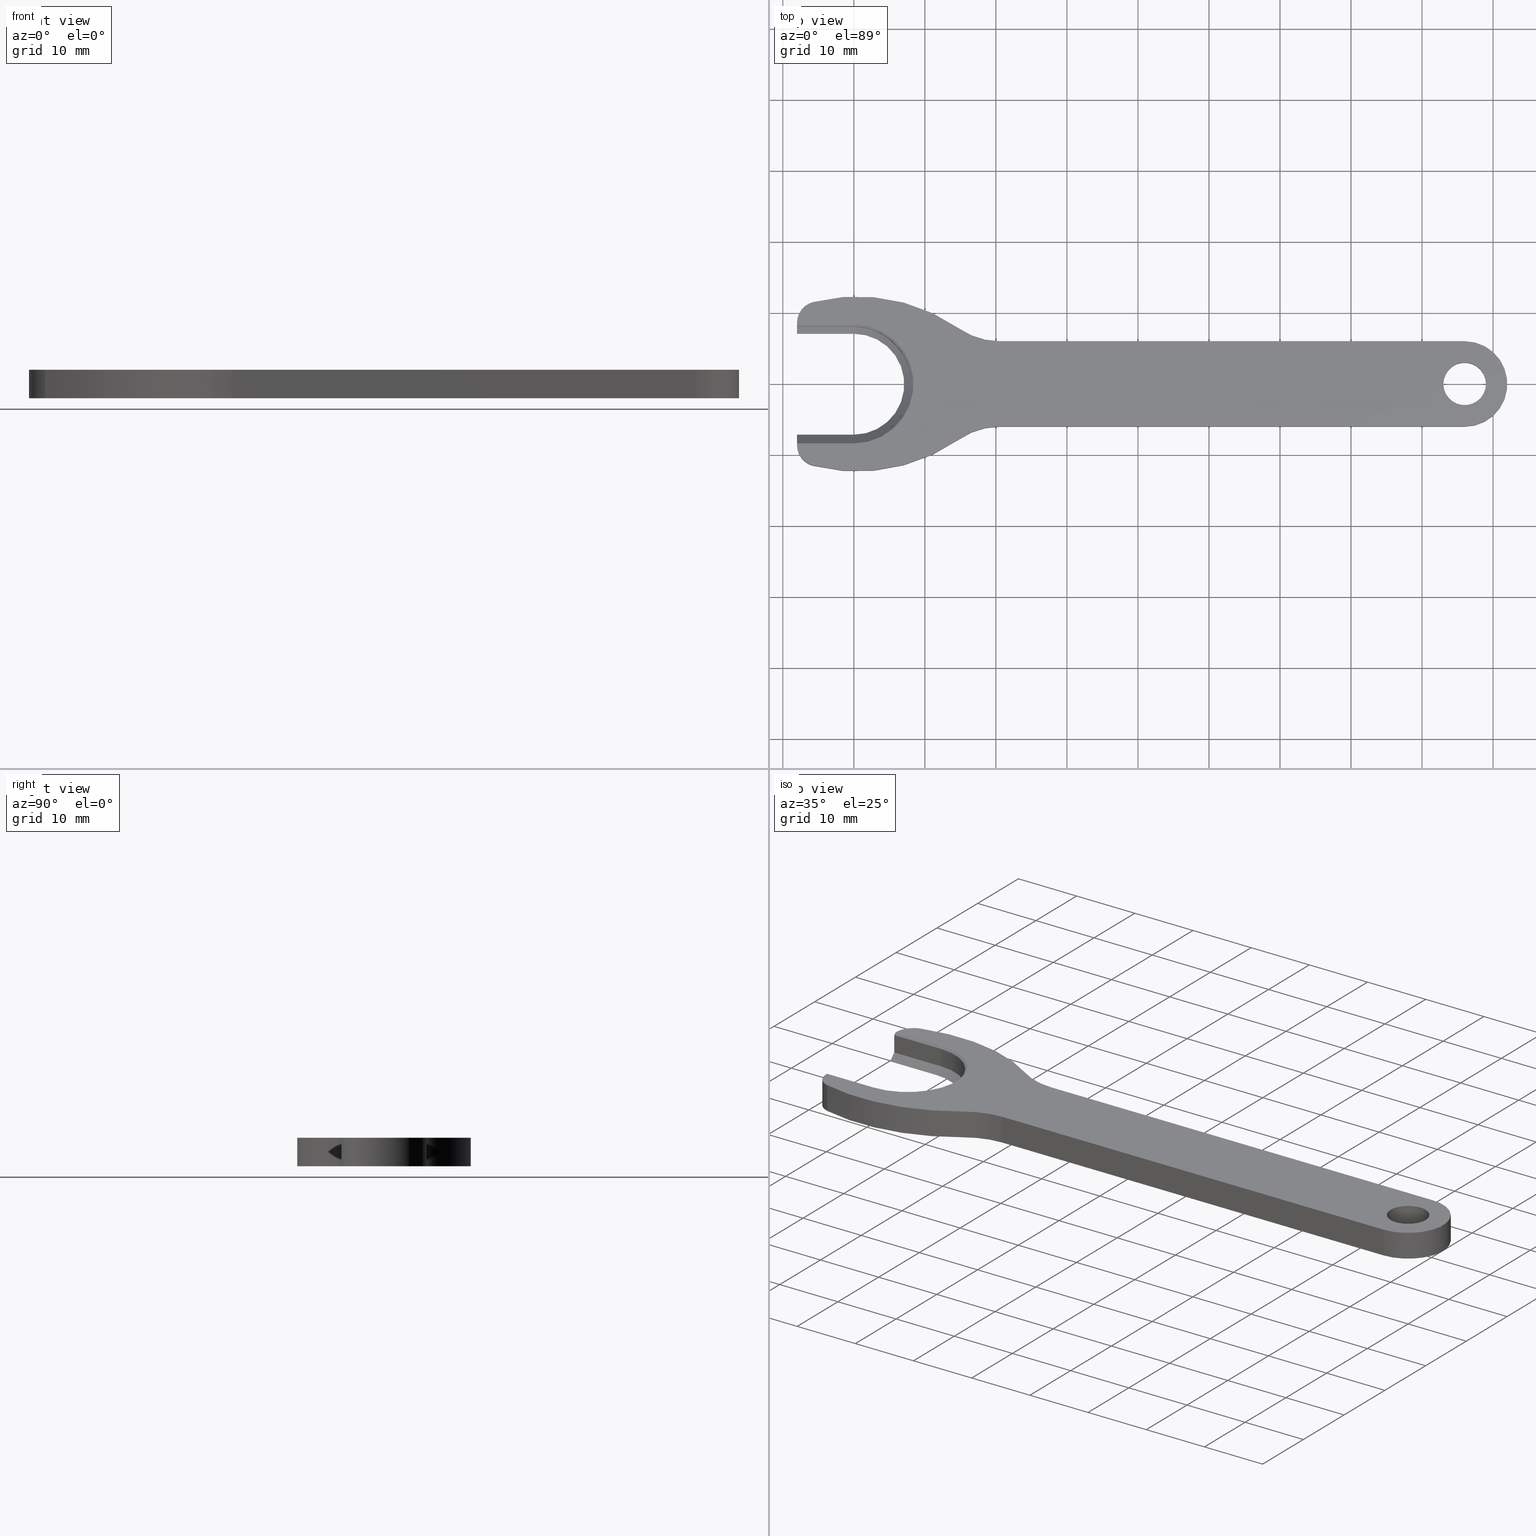
[diagram: canonical four-view strip — front | top / right | iso, engineering-drawing reading convention]
A machine part, canonical four-view strip (front | top / right | iso — engineering-drawing reading convention). The complete STEP part file that produces these views, byte-faithful:
ISO-10303-21;
HEADER;
FILE_DESCRIPTION( ( 'Unknown' ), '1' );
FILE_NAME( 'C:/Users/bkuehnle/Desktop/Homepage/732112000-A.stp', 'Unknown', ( 'Unknown' ), ( 'Unknown' ), 'PSStep 15.0.49', 'Unknown', '  ' );
FILE_SCHEMA( ( 'AUTOMOTIVE_DESIGN { 1 0 10303 214 1 1 1 1 }' ) );
ENDSEC;
DATA;
#1 = MECHANICAL_DESIGN_GEOMETRIC_PRESENTATION_REPRESENTATION( ' ', ( #10, #11, #12, #13, #14, #15, #16, #17, #18, #19, #20, #21, #22, #23, #24, #25, #26, #27, #28, #29, #30, #31, #32 ), #6 );
#2 = PRODUCT_DEFINITION_CONTEXT( '', #33, 'design' );
#3 = APPLICATION_PROTOCOL_DEFINITION( 'international standard', 'automotive_design', 2001, #33 );
#4 = PRODUCT_CATEGORY_RELATIONSHIP( 'NONE', 'NONE', #34, #35 );
#5 = SHAPE_DEFINITION_REPRESENTATION( #36, #37 );
#6 =  ( GEOMETRIC_REPRESENTATION_CONTEXT( 3 )GLOBAL_UNCERTAINTY_ASSIGNED_CONTEXT( ( #40 ) )GLOBAL_UNIT_ASSIGNED_CONTEXT( ( #42, #43, #44 ) )REPRESENTATION_CONTEXT( 'NONE', 'WORKSPACE' ) );
#10 = STYLED_ITEM( '', ( #46 ), #47 );
#11 = STYLED_ITEM( '', ( #48 ), #49 );
#12 = STYLED_ITEM( '', ( #50 ), #51 );
#13 = STYLED_ITEM( '', ( #52 ), #53 );
#14 = STYLED_ITEM( '', ( #54 ), #55 );
#15 = STYLED_ITEM( '', ( #56 ), #57 );
#16 = STYLED_ITEM( '', ( #58 ), #59 );
#17 = STYLED_ITEM( '', ( #60 ), #61 );
#18 = STYLED_ITEM( '', ( #62 ), #63 );
#19 = STYLED_ITEM( '', ( #64 ), #65 );
#20 = STYLED_ITEM( '', ( #66 ), #67 );
#21 = STYLED_ITEM( '', ( #68 ), #69 );
#22 = STYLED_ITEM( '', ( #70 ), #71 );
#23 = STYLED_ITEM( '', ( #72 ), #73 );
#24 = STYLED_ITEM( '', ( #74 ), #75 );
#25 = STYLED_ITEM( '', ( #76 ), #77 );
#26 = STYLED_ITEM( '', ( #78 ), #79 );
#27 = STYLED_ITEM( '', ( #80 ), #81 );
#28 = STYLED_ITEM( '', ( #82 ), #83 );
#29 = STYLED_ITEM( '', ( #84 ), #85 );
#30 = STYLED_ITEM( '', ( #86 ), #87 );
#31 = STYLED_ITEM( '', ( #88 ), #89 );
#32 = STYLED_ITEM( '', ( #90 ), #91 );
#33 = APPLICATION_CONTEXT( 'core data for automotive mechanical design processes' );
#34 = PRODUCT_CATEGORY( 'part', 'NONE' );
#35 = PRODUCT_RELATED_PRODUCT_CATEGORY( 'detail', ' ', ( #92 ) );
#36 = PRODUCT_DEFINITION_SHAPE( 'NONE', 'NONE', #93 );
#37 = ADVANCED_BREP_SHAPE_REPRESENTATION( '1', ( #94, #95 ), #6 );
#40 = UNCERTAINTY_MEASURE_WITH_UNIT( LENGTH_MEASURE( 0.00100000000000000 ), #42, '', '' );
#42 =  ( CONVERSION_BASED_UNIT( 'MILLIMETRE', #98 )LENGTH_UNIT(  )NAMED_UNIT( #101 ) );
#43 =  ( NAMED_UNIT( #103 )PLANE_ANGLE_UNIT(  )SI_UNIT( $, .RADIAN. ) );
#44 =  ( NAMED_UNIT( #103 )SI_UNIT( $, .STERADIAN. )SOLID_ANGLE_UNIT(  ) );
#46 = PRESENTATION_STYLE_ASSIGNMENT( ( #109 ) );
#47 = ADVANCED_FACE( '', ( #110 ), #111, .T. );
#48 = PRESENTATION_STYLE_ASSIGNMENT( ( #112 ) );
#49 = ADVANCED_FACE( '', ( #113 ), #114, .T. );
#50 = PRESENTATION_STYLE_ASSIGNMENT( ( #115 ) );
#51 = ADVANCED_FACE( '', ( #116 ), #117, .T. );
#52 = PRESENTATION_STYLE_ASSIGNMENT( ( #118 ) );
#53 = ADVANCED_FACE( '', ( #119 ), #120, .T. );
#54 = PRESENTATION_STYLE_ASSIGNMENT( ( #121 ) );
#55 = ADVANCED_FACE( '', ( #122 ), #123, .T. );
#56 = PRESENTATION_STYLE_ASSIGNMENT( ( #124 ) );
#57 = ADVANCED_FACE( '', ( #125, #126 ), #127, .F. );
#58 = PRESENTATION_STYLE_ASSIGNMENT( ( #128 ) );
#59 = ADVANCED_FACE( '', ( #129 ), #130, .F. );
#60 = PRESENTATION_STYLE_ASSIGNMENT( ( #131 ) );
#61 = ADVANCED_FACE( '', ( #132 ), #133, .F. );
#62 = PRESENTATION_STYLE_ASSIGNMENT( ( #134 ) );
#63 = ADVANCED_FACE( '', ( #135 ), #136, .F. );
#64 = PRESENTATION_STYLE_ASSIGNMENT( ( #137 ) );
#65 = ADVANCED_FACE( '', ( #138 ), #139, .T. );
#66 = PRESENTATION_STYLE_ASSIGNMENT( ( #140 ) );
#67 = ADVANCED_FACE( '', ( #141 ), #142, .T. );
#68 = PRESENTATION_STYLE_ASSIGNMENT( ( #143 ) );
#69 = ADVANCED_FACE( '', ( #144 ), #145, .T. );
#70 = PRESENTATION_STYLE_ASSIGNMENT( ( #146 ) );
#71 = ADVANCED_FACE( '', ( #147, #148 ), #149, .F. );
#72 = PRESENTATION_STYLE_ASSIGNMENT( ( #150 ) );
#73 = ADVANCED_FACE( '', ( #151 ), #152, .T. );
#74 = PRESENTATION_STYLE_ASSIGNMENT( ( #153 ) );
#75 = ADVANCED_FACE( '', ( #154, #155 ), #156, .T. );
#76 = PRESENTATION_STYLE_ASSIGNMENT( ( #157 ) );
#77 = ADVANCED_FACE( '', ( #158 ), #159, .T. );
#78 = PRESENTATION_STYLE_ASSIGNMENT( ( #160 ) );
#79 = ADVANCED_FACE( '', ( #161 ), #162, .T. );
#80 = PRESENTATION_STYLE_ASSIGNMENT( ( #163 ) );
#81 = ADVANCED_FACE( '', ( #164 ), #165, .F. );
#82 = PRESENTATION_STYLE_ASSIGNMENT( ( #166 ) );
#83 = ADVANCED_FACE( '', ( #167 ), #168, .T. );
#84 = PRESENTATION_STYLE_ASSIGNMENT( ( #169 ) );
#85 = ADVANCED_FACE( '', ( #170 ), #171, .F. );
#86 = PRESENTATION_STYLE_ASSIGNMENT( ( #172 ) );
#87 = ADVANCED_FACE( '', ( #173 ), #174, .F. );
#88 = PRESENTATION_STYLE_ASSIGNMENT( ( #175 ) );
#89 = ADVANCED_FACE( '', ( #176 ), #177, .T. );
#90 = PRESENTATION_STYLE_ASSIGNMENT( ( #178 ) );
#91 = ADVANCED_FACE( '', ( #179 ), #180, .F. );
#92 = PRODUCT( '1', '1', 'PART-1-DESC', ( #181 ) );
#93 = PRODUCT_DEFINITION( 'NONE', 'NONE', #182, #2 );
#94 = MANIFOLD_SOLID_BREP( '1', #183 );
#95 = AXIS2_PLACEMENT_3D( '', #184, #185, #186 );
#98 = LENGTH_MEASURE_WITH_UNIT( LENGTH_MEASURE( 1.00000000000000 ), #187 );
#101 = DIMENSIONAL_EXPONENTS( 1.00000000000000, 0.000000000000000, 0.000000000000000, 0.000000000000000, 0.000000000000000, 0.000000000000000, 0.000000000000000 );
#103 = DIMENSIONAL_EXPONENTS( 0.000000000000000, 0.000000000000000, 0.000000000000000, 0.000000000000000, 0.000000000000000, 0.000000000000000, 0.000000000000000 );
#109 = SURFACE_STYLE_USAGE( .BOTH., #188 );
#110 = FACE_OUTER_BOUND( '', #189, .T. );
#111 = CYLINDRICAL_SURFACE( '', #190, 25.0000000000000 );
#112 = SURFACE_STYLE_USAGE( .BOTH., #191 );
#113 = FACE_OUTER_BOUND( '', #192, .T. );
#114 = PLANE( '', #193 );
#115 = SURFACE_STYLE_USAGE( .BOTH., #194 );
#116 = FACE_OUTER_BOUND( '', #195, .T. );
#117 = PLANE( '', #196 );
#118 = SURFACE_STYLE_USAGE( .BOTH., #197 );
#119 = FACE_OUTER_BOUND( '', #198, .T. );
#120 = CYLINDRICAL_SURFACE( '', #199, 3.00000000000000 );
#121 = SURFACE_STYLE_USAGE( .BOTH., #200 );
#122 = FACE_OUTER_BOUND( '', #201, .T. );
#123 = CYLINDRICAL_SURFACE( '', #202, 25.0000000000000 );
#124 = SURFACE_STYLE_USAGE( .BOTH., #203 );
#125 = FACE_BOUND( '', #204, .T. );
#126 = FACE_OUTER_BOUND( '', #205, .T. );
#127 = PLANE( '', #206 );
#128 = SURFACE_STYLE_USAGE( .BOTH., #207 );
#129 = FACE_OUTER_BOUND( '', #208, .T. );
#130 = PLANE( '', #209 );
#131 = SURFACE_STYLE_USAGE( .BOTH., #210 );
#132 = FACE_OUTER_BOUND( '', #211, .T. );
#133 = CYLINDRICAL_SURFACE( '', #212, 10.0000000000000 );
#134 = SURFACE_STYLE_USAGE( .BOTH., #213 );
#135 = FACE_OUTER_BOUND( '', #214, .T. );
#136 = CONICAL_SURFACE( '', #215, 8.10000000000000, 0.785398163397449 );
#137 = SURFACE_STYLE_USAGE( .BOTH., #216 );
#138 = FACE_OUTER_BOUND( '', #217, .T. );
#139 = PLANE( '', #218 );
#140 = SURFACE_STYLE_USAGE( .BOTH., #219 );
#141 = FACE_OUTER_BOUND( '', #220, .T. );
#142 = PLANE( '', #221 );
#143 = SURFACE_STYLE_USAGE( .BOTH., #222 );
#144 = FACE_OUTER_BOUND( '', #223, .T. );
#145 = CYLINDRICAL_SURFACE( '', #224, 3.00000000000000 );
#146 = SURFACE_STYLE_USAGE( .BOTH., #225 );
#147 = FACE_OUTER_BOUND( '', #226, .T. );
#148 = FACE_OUTER_BOUND( '', #227, .T. );
#149 = CYLINDRICAL_SURFACE( '', #228, 3.00000000000000 );
#150 = SURFACE_STYLE_USAGE( .BOTH., #229 );
#151 = FACE_OUTER_BOUND( '', #230, .T. );
#152 = PLANE( '', #231 );
#153 = SURFACE_STYLE_USAGE( .BOTH., #232 );
#154 = FACE_OUTER_BOUND( '', #233, .T. );
#155 = FACE_BOUND( '', #234, .T. );
#156 = PLANE( '', #235 );
#157 = SURFACE_STYLE_USAGE( .BOTH., #236 );
#158 = FACE_OUTER_BOUND( '', #237, .T. );
#159 = PLANE( '', #238 );
#160 = SURFACE_STYLE_USAGE( .BOTH., #239 );
#161 = FACE_OUTER_BOUND( '', #240, .T. );
#162 = CYLINDRICAL_SURFACE( '', #241, 6.00000000000000 );
#163 = SURFACE_STYLE_USAGE( .BOTH., #242 );
#164 = FACE_OUTER_BOUND( '', #243, .T. );
#165 = CYLINDRICAL_SURFACE( '', #244, 8.10000000000000 );
#166 = SURFACE_STYLE_USAGE( .BOTH., #245 );
#167 = FACE_OUTER_BOUND( '', #246, .T. );
#168 = PLANE( '', #247 );
#169 = SURFACE_STYLE_USAGE( .BOTH., #248 );
#170 = FACE_OUTER_BOUND( '', #249, .T. );
#171 = PLANE( '', #250 );
#172 = SURFACE_STYLE_USAGE( .BOTH., #251 );
#173 = FACE_OUTER_BOUND( '', #252, .T. );
#174 = CYLINDRICAL_SURFACE( '', #253, 10.0000000000000 );
#175 = SURFACE_STYLE_USAGE( .BOTH., #254 );
#176 = FACE_OUTER_BOUND( '', #255, .T. );
#177 = PLANE( '', #256 );
#178 = SURFACE_STYLE_USAGE( .BOTH., #257 );
#179 = FACE_OUTER_BOUND( '', #258, .T. );
#180 = CONICAL_SURFACE( '', #259, 8.40000000000000, 0.785398163397448 );
#181 = PRODUCT_CONTEXT( '', #33, 'mechanical' );
#182 = PRODUCT_DEFINITION_FORMATION_WITH_SPECIFIED_SOURCE( ' ', 'NONE', #92, .NOT_KNOWN. );
#183 = CLOSED_SHELL( '', ( #89, #85, #63, #77, #67, #47, #61, #65, #79, #51, #87, #69, #53, #71, #73, #75, #57, #55, #81, #83, #49, #91, #59 ) );
#184 = CARTESIAN_POINT( '', ( 0.000000000000000, 0.000000000000000, 0.000000000000000 ) );
#185 = DIRECTION( '', ( 0.000000000000000, 0.000000000000000, 1.00000000000000 ) );
#186 = DIRECTION( '', ( 1.00000000000000, 0.000000000000000, 0.000000000000000 ) );
#187 =  ( LENGTH_UNIT(  )NAMED_UNIT( #101 )SI_UNIT( .MILLI., .METRE. ) );
#188 = SURFACE_SIDE_STYLE( '', ( #261 ) );
#189 = EDGE_LOOP( '', ( #262, #263, #264, #265 ) );
#190 = AXIS2_PLACEMENT_3D( '', #266, #267, #268 );
#191 = SURFACE_SIDE_STYLE( '', ( #269 ) );
#192 = EDGE_LOOP( '', ( #270, #271, #272, #273 ) );
#193 = AXIS2_PLACEMENT_3D( '', #274, #275, #276 );
#194 = SURFACE_SIDE_STYLE( '', ( #277 ) );
#195 = EDGE_LOOP( '', ( #278, #279, #280, #281 ) );
#196 = AXIS2_PLACEMENT_3D( '', #282, #283, #284 );
#197 = SURFACE_SIDE_STYLE( '', ( #285 ) );
#198 = EDGE_LOOP( '', ( #286, #287, #288, #289 ) );
#199 = AXIS2_PLACEMENT_3D( '', #290, #291, #292 );
#200 = SURFACE_SIDE_STYLE( '', ( #293 ) );
#201 = EDGE_LOOP( '', ( #294, #295, #296, #297 ) );
#202 = AXIS2_PLACEMENT_3D( '', #298, #299, #300 );
#203 = SURFACE_SIDE_STYLE( '', ( #301 ) );
#204 = EDGE_LOOP( '', ( #302 ) );
#205 = EDGE_LOOP( '', ( #303, #304, #305, #306, #307, #308, #309, #310, #311, #312, #313, #314, #315, #316 ) );
#206 = AXIS2_PLACEMENT_3D( '', #317, #318, #319 );
#207 = SURFACE_SIDE_STYLE( '', ( #320 ) );
#208 = EDGE_LOOP( '', ( #321, #322, #323, #324 ) );
#209 = AXIS2_PLACEMENT_3D( '', #325, #326, #327 );
#210 = SURFACE_SIDE_STYLE( '', ( #328 ) );
#211 = EDGE_LOOP( '', ( #329, #330, #331, #332 ) );
#212 = AXIS2_PLACEMENT_3D( '', #333, #334, #335 );
#213 = SURFACE_SIDE_STYLE( '', ( #336 ) );
#214 = EDGE_LOOP( '', ( #337, #338, #339, #340 ) );
#215 = AXIS2_PLACEMENT_3D( '', #341, #342, #343 );
#216 = SURFACE_SIDE_STYLE( '', ( #344 ) );
#217 = EDGE_LOOP( '', ( #345, #346, #347, #348 ) );
#218 = AXIS2_PLACEMENT_3D( '', #349, #350, #351 );
#219 = SURFACE_SIDE_STYLE( '', ( #352 ) );
#220 = EDGE_LOOP( '', ( #353, #354, #355, #356, #357, #358 ) );
#221 = AXIS2_PLACEMENT_3D( '', #359, #360, #361 );
#222 = SURFACE_SIDE_STYLE( '', ( #362 ) );
#223 = EDGE_LOOP( '', ( #363, #364, #365, #366 ) );
#224 = AXIS2_PLACEMENT_3D( '', #367, #368, #369 );
#225 = SURFACE_SIDE_STYLE( '', ( #370 ) );
#226 = EDGE_LOOP( '', ( #371 ) );
#227 = EDGE_LOOP( '', ( #372 ) );
#228 = AXIS2_PLACEMENT_3D( '', #373, #374, #375 );
#229 = SURFACE_SIDE_STYLE( '', ( #376 ) );
#230 = EDGE_LOOP( '', ( #377, #378, #379, #380 ) );
#231 = AXIS2_PLACEMENT_3D( '', #381, #382, #383 );
#232 = SURFACE_SIDE_STYLE( '', ( #384 ) );
#233 = EDGE_LOOP( '', ( #385, #386, #387, #388, #389, #390, #391, #392, #393, #394, #395, #396, #397, #398 ) );
#234 = EDGE_LOOP( '', ( #399 ) );
#235 = AXIS2_PLACEMENT_3D( '', #400, #401, #402 );
#236 = SURFACE_SIDE_STYLE( '', ( #403 ) );
#237 = EDGE_LOOP( '', ( #404, #405, #406, #407, #408, #409 ) );
#238 = AXIS2_PLACEMENT_3D( '', #410, #411, #412 );
#239 = SURFACE_SIDE_STYLE( '', ( #413 ) );
#240 = EDGE_LOOP( '', ( #414, #415, #416, #417 ) );
#241 = AXIS2_PLACEMENT_3D( '', #418, #419, #420 );
#242 = SURFACE_SIDE_STYLE( '', ( #421 ) );
#243 = EDGE_LOOP( '', ( #422, #423, #424, #425 ) );
#244 = AXIS2_PLACEMENT_3D( '', #426, #427, #428 );
#245 = SURFACE_SIDE_STYLE( '', ( #429 ) );
#246 = EDGE_LOOP( '', ( #430, #431, #432, #433 ) );
#247 = AXIS2_PLACEMENT_3D( '', #434, #435, #436 );
#248 = SURFACE_SIDE_STYLE( '', ( #437 ) );
#249 = EDGE_LOOP( '', ( #438, #439, #440, #441 ) );
#250 = AXIS2_PLACEMENT_3D( '', #442, #443, #444 );
#251 = SURFACE_SIDE_STYLE( '', ( #445 ) );
#252 = EDGE_LOOP( '', ( #446, #447, #448, #449 ) );
#253 = AXIS2_PLACEMENT_3D( '', #450, #451, #452 );
#254 = SURFACE_SIDE_STYLE( '', ( #453 ) );
#255 = EDGE_LOOP( '', ( #454, #455, #456, #457 ) );
#256 = AXIS2_PLACEMENT_3D( '', #458, #459, #460 );
#257 = SURFACE_SIDE_STYLE( '', ( #461 ) );
#258 = EDGE_LOOP( '', ( #462, #463, #464, #465 ) );
#259 = AXIS2_PLACEMENT_3D( '', #466, #467, #468 );
#261 = SURFACE_STYLE_FILL_AREA( #469 );
#262 = ORIENTED_EDGE( '', *, *, #470, .T. );
#263 = ORIENTED_EDGE( '', *, *, #471, .T. );
#264 = ORIENTED_EDGE( '', *, *, #472, .F. );
#265 = ORIENTED_EDGE( '', *, *, #473, .F. );
#266 = CARTESIAN_POINT( '', ( 0.500000000000000, 12.7000000000000, 2.00000000000000 ) );
#267 = DIRECTION( '', ( -0.000000000000000, -0.000000000000000, 1.00000000000000 ) );
#268 = DIRECTION( '', ( -1.00000000000000, 0.000000000000000, 0.000000000000000 ) );
#269 = SURFACE_STYLE_FILL_AREA( #474 );
#270 = ORIENTED_EDGE( '', *, *, #475, .F. );
#271 = ORIENTED_EDGE( '', *, *, #476, .F. );
#272 = ORIENTED_EDGE( '', *, *, #477, .F. );
#273 = ORIENTED_EDGE( '', *, *, #478, .F. );
#274 = CARTESIAN_POINT( '', ( 0.000000000000000, 8.10000000000000, -1.00000000000000 ) );
#275 = DIRECTION( '', ( 0.000000000000000, -0.707106781186547, 0.707106781186548 ) );
#276 = DIRECTION( '', ( 0.000000000000000, -0.707106781186548, -0.707106781186547 ) );
#277 = SURFACE_STYLE_FILL_AREA( #479 );
#278 = ORIENTED_EDGE( '', *, *, #480, .F. );
#279 = ORIENTED_EDGE( '', *, *, #481, .F. );
#280 = ORIENTED_EDGE( '', *, *, #482, .T. );
#281 = ORIENTED_EDGE( '', *, *, #483, .T. );
#282 = CARTESIAN_POINT( '', ( 20.5327232297558, 6.00000000000000, 2.00000000000000 ) );
#283 = DIRECTION( '', ( 1.32487829153546E-016, 1.00000000000000, 0.000000000000000 ) );
#284 = DIRECTION( '', ( -1.00000000000000, 1.32487829153546E-016, 0.000000000000000 ) );
#285 = SURFACE_STYLE_FILL_AREA( #484 );
#286 = ORIENTED_EDGE( '', *, *, #485, .F. );
#287 = ORIENTED_EDGE( '', *, *, #486, .F. );
#288 = ORIENTED_EDGE( '', *, *, #487, .F. );
#289 = ORIENTED_EDGE( '', *, *, #471, .F. );
#290 = CARTESIAN_POINT( '', ( -5.00000000000000, -8.60140840414081, 2.00000000000000 ) );
#291 = DIRECTION( '', ( -0.000000000000000, -0.000000000000000, 1.00000000000000 ) );
#292 = DIRECTION( '', ( -1.00000000000000, 0.000000000000000, 0.000000000000000 ) );
#293 = SURFACE_STYLE_FILL_AREA( #488 );
#294 = ORIENTED_EDGE( '', *, *, #489, .F. );
#295 = ORIENTED_EDGE( '', *, *, #490, .T. );
#296 = ORIENTED_EDGE( '', *, *, #491, .T. );
#297 = ORIENTED_EDGE( '', *, *, #492, .T. );
#298 = CARTESIAN_POINT( '', ( 0.500000000000000, -12.7000000000000, 2.00000000000000 ) );
#299 = DIRECTION( '', ( -0.000000000000000, -0.000000000000000, 1.00000000000000 ) );
#300 = DIRECTION( '', ( -1.00000000000000, 0.000000000000000, 0.000000000000000 ) );
#301 = SURFACE_STYLE_FILL_AREA( #493 );
#302 = ORIENTED_EDGE( '', *, *, #494, .T. );
#303 = ORIENTED_EDGE( '', *, *, #472, .T. );
#304 = ORIENTED_EDGE( '', *, *, #487, .T. );
#305 = ORIENTED_EDGE( '', *, *, #495, .T. );
#306 = ORIENTED_EDGE( '', *, *, #496, .T. );
#307 = ORIENTED_EDGE( '', *, *, #497, .T. );
#308 = ORIENTED_EDGE( '', *, *, #476, .T. );
#309 = ORIENTED_EDGE( '', *, *, #498, .T. );
#310 = ORIENTED_EDGE( '', *, *, #499, .T. );
#311 = ORIENTED_EDGE( '', *, *, #489, .T. );
#312 = ORIENTED_EDGE( '', *, *, #500, .T. );
#313 = ORIENTED_EDGE( '', *, *, #480, .T. );
#314 = ORIENTED_EDGE( '', *, *, #501, .T. );
#315 = ORIENTED_EDGE( '', *, *, #502, .T. );
#316 = ORIENTED_EDGE( '', *, *, #503, .T. );
#317 = CARTESIAN_POINT( '', ( 20.5327232297558, 16.0000000000000, -2.00000000000000 ) );
#318 = DIRECTION( '', ( 0.000000000000000, 0.000000000000000, 1.00000000000000 ) );
#319 = DIRECTION( '', ( 1.00000000000000, 0.000000000000000, 0.000000000000000 ) );
#320 = SURFACE_STYLE_FILL_AREA( #504 );
#321 = ORIENTED_EDGE( '', *, *, #505, .F. );
#322 = ORIENTED_EDGE( '', *, *, #506, .F. );
#323 = ORIENTED_EDGE( '', *, *, #507, .T. );
#324 = ORIENTED_EDGE( '', *, *, #508, .F. );
#325 = CARTESIAN_POINT( '', ( 20.5327232297558, 8.40000000000000, 2.00000000000000 ) );
#326 = DIRECTION( '', ( 0.000000000000000, 0.707106781186548, -0.707106781186548 ) );
#327 = DIRECTION( '', ( 0.000000000000000, 0.707106781186548, 0.707106781186548 ) );
#328 = SURFACE_STYLE_FILL_AREA( #509 );
#329 = ORIENTED_EDGE( '', *, *, #503, .F. );
#330 = ORIENTED_EDGE( '', *, *, #510, .F. );
#331 = ORIENTED_EDGE( '', *, *, #511, .T. );
#332 = ORIENTED_EDGE( '', *, *, #473, .T. );
#333 = CARTESIAN_POINT( '', ( 20.5327232297559, -16.0000000000000, 2.00000000000000 ) );
#334 = DIRECTION( '', ( -0.000000000000000, -0.000000000000000, 1.00000000000000 ) );
#335 = DIRECTION( '', ( -1.00000000000000, 0.000000000000000, 0.000000000000000 ) );
#336 = SURFACE_STYLE_FILL_AREA( #512 );
#337 = ORIENTED_EDGE( '', *, *, #477, .T. );
#338 = ORIENTED_EDGE( '', *, *, #497, .F. );
#339 = ORIENTED_EDGE( '', *, *, #513, .F. );
#340 = ORIENTED_EDGE( '', *, *, #514, .F. );
#341 = CARTESIAN_POINT( '', ( 3.30643715532042E-015, 0.000000000000000, -1.00000000000000 ) );
#342 = DIRECTION( '', ( -0.000000000000000, -0.000000000000000, 1.00000000000000 ) );
#343 = DIRECTION( '', ( 1.00000000000000, 0.000000000000000, 0.000000000000000 ) );
#344 = SURFACE_STYLE_FILL_AREA( #515 );
#345 = ORIENTED_EDGE( '', *, *, #502, .F. );
#346 = ORIENTED_EDGE( '', *, *, #516, .F. );
#347 = ORIENTED_EDGE( '', *, *, #517, .T. );
#348 = ORIENTED_EDGE( '', *, *, #510, .T. );
#349 = CARTESIAN_POINT( '', ( 86.0000000000000, -6.00000000000000, 2.00000000000000 ) );
#350 = DIRECTION( '', ( -5.29951316614185E-017, -1.00000000000000, 0.000000000000000 ) );
#351 = DIRECTION( '', ( 1.00000000000000, -5.29951316614185E-017, 0.000000000000000 ) );
#352 = SURFACE_STYLE_FILL_AREA( #518 );
#353 = ORIENTED_EDGE( '', *, *, #519, .T. );
#354 = ORIENTED_EDGE( '', *, *, #505, .T. );
#355 = ORIENTED_EDGE( '', *, *, #520, .T. );
#356 = ORIENTED_EDGE( '', *, *, #521, .T. );
#357 = ORIENTED_EDGE( '', *, *, #498, .F. );
#358 = ORIENTED_EDGE( '', *, *, #475, .T. );
#359 = CARTESIAN_POINT( '', ( -8.00000000000000, 10.8106358910175, 2.00000000000000 ) );
#360 = DIRECTION( '', ( -1.00000000000000, -4.67500322566309E-016, 0.000000000000000 ) );
#361 = DIRECTION( '', ( 4.67500322566309E-016, -1.00000000000000, 0.000000000000000 ) );
#362 = SURFACE_STYLE_FILL_AREA( #522 );
#363 = ORIENTED_EDGE( '', *, *, #523, .F. );
#364 = ORIENTED_EDGE( '', *, *, #490, .F. );
#365 = ORIENTED_EDGE( '', *, *, #499, .F. );
#366 = ORIENTED_EDGE( '', *, *, #521, .F. );
#367 = CARTESIAN_POINT( '', ( -5.00000000000000, 8.60140840414080, 2.00000000000000 ) );
#368 = DIRECTION( '', ( -0.000000000000000, -0.000000000000000, 1.00000000000000 ) );
#369 = DIRECTION( '', ( -1.00000000000000, 0.000000000000000, 0.000000000000000 ) );
#370 = SURFACE_STYLE_FILL_AREA( #524 );
#371 = ORIENTED_EDGE( '', *, *, #494, .F. );
#372 = ORIENTED_EDGE( '', *, *, #525, .T. );
#373 = CARTESIAN_POINT( '', ( 86.0000000000000, 0.000000000000000, -101.059012221154 ) );
#374 = DIRECTION( '', ( -0.000000000000000, -0.000000000000000, -1.00000000000000 ) );
#375 = DIRECTION( '', ( 1.00000000000000, 0.000000000000000, 0.000000000000000 ) );
#376 = SURFACE_STYLE_FILL_AREA( #526 );
#377 = ORIENTED_EDGE( '', *, *, #527, .T. );
#378 = ORIENTED_EDGE( '', *, *, #506, .T. );
#379 = ORIENTED_EDGE( '', *, *, #519, .F. );
#380 = ORIENTED_EDGE( '', *, *, #478, .T. );
#381 = CARTESIAN_POINT( '', ( -8.00000000000000, 8.10000000000000, -1.00000000000000 ) );
#382 = DIRECTION( '', ( 0.000000000000000, -1.00000000000000, 0.000000000000000 ) );
#383 = DIRECTION( '', ( 0.000000000000000, 0.000000000000000, -1.00000000000000 ) );
#384 = SURFACE_STYLE_FILL_AREA( #528 );
#385 = ORIENTED_EDGE( '', *, *, #520, .F. );
#386 = ORIENTED_EDGE( '', *, *, #508, .T. );
#387 = ORIENTED_EDGE( '', *, *, #529, .T. );
#388 = ORIENTED_EDGE( '', *, *, #530, .T. );
#389 = ORIENTED_EDGE( '', *, *, #531, .F. );
#390 = ORIENTED_EDGE( '', *, *, #485, .T. );
#391 = ORIENTED_EDGE( '', *, *, #470, .F. );
#392 = ORIENTED_EDGE( '', *, *, #511, .F. );
#393 = ORIENTED_EDGE( '', *, *, #517, .F. );
#394 = ORIENTED_EDGE( '', *, *, #532, .F. );
#395 = ORIENTED_EDGE( '', *, *, #482, .F. );
#396 = ORIENTED_EDGE( '', *, *, #533, .F. );
#397 = ORIENTED_EDGE( '', *, *, #491, .F. );
#398 = ORIENTED_EDGE( '', *, *, #523, .T. );
#399 = ORIENTED_EDGE( '', *, *, #525, .F. );
#400 = CARTESIAN_POINT( '', ( 20.5327232297558, 16.0000000000000, 2.00000000000000 ) );
#401 = DIRECTION( '', ( 0.000000000000000, 0.000000000000000, 1.00000000000000 ) );
#402 = DIRECTION( '', ( 1.00000000000000, 0.000000000000000, 0.000000000000000 ) );
#403 = SURFACE_STYLE_FILL_AREA( #534 );
#404 = ORIENTED_EDGE( '', *, *, #531, .T. );
#405 = ORIENTED_EDGE( '', *, *, #535, .T. );
#406 = ORIENTED_EDGE( '', *, *, #536, .F. );
#407 = ORIENTED_EDGE( '', *, *, #537, .T. );
#408 = ORIENTED_EDGE( '', *, *, #495, .F. );
#409 = ORIENTED_EDGE( '', *, *, #486, .T. );
#410 = CARTESIAN_POINT( '', ( -8.00000000000000, -7.10000000000000, 2.00000000000000 ) );
#411 = DIRECTION( '', ( -1.00000000000000, 4.67500322566309E-016, 0.000000000000000 ) );
#412 = DIRECTION( '', ( -4.67500322566309E-016, -1.00000000000000, 0.000000000000000 ) );
#413 = SURFACE_STYLE_FILL_AREA( #538 );
#414 = ORIENTED_EDGE( '', *, *, #501, .F. );
#415 = ORIENTED_EDGE( '', *, *, #483, .F. );
#416 = ORIENTED_EDGE( '', *, *, #532, .T. );
#417 = ORIENTED_EDGE( '', *, *, #516, .T. );
#418 = CARTESIAN_POINT( '', ( 86.0000000000000, 0.000000000000000, 2.00000000000000 ) );
#419 = DIRECTION( '', ( -0.000000000000000, -0.000000000000000, 1.00000000000000 ) );
#420 = DIRECTION( '', ( -1.00000000000000, 0.000000000000000, 0.000000000000000 ) );
#421 = SURFACE_STYLE_FILL_AREA( #539 );
#422 = ORIENTED_EDGE( '', *, *, #540, .T. );
#423 = ORIENTED_EDGE( '', *, *, #541, .T. );
#424 = ORIENTED_EDGE( '', *, *, #527, .F. );
#425 = ORIENTED_EDGE( '', *, *, #514, .T. );
#426 = CARTESIAN_POINT( '', ( 0.000000000000000, 0.000000000000000, -1.00000000000000 ) );
#427 = DIRECTION( '', ( -0.000000000000000, -0.000000000000000, -1.00000000000000 ) );
#428 = DIRECTION( '', ( 1.00000000000000, 0.000000000000000, 0.000000000000000 ) );
#429 = SURFACE_STYLE_FILL_AREA( #542 );
#430 = ORIENTED_EDGE( '', *, *, #536, .T. );
#431 = ORIENTED_EDGE( '', *, *, #543, .T. );
#432 = ORIENTED_EDGE( '', *, *, #540, .F. );
#433 = ORIENTED_EDGE( '', *, *, #544, .T. );
#434 = CARTESIAN_POINT( '', ( 0.000000000000000, -8.10000000000000, -1.00000000000000 ) );
#435 = DIRECTION( '', ( 0.000000000000000, 1.00000000000000, 0.000000000000000 ) );
#436 = DIRECTION( '', ( 0.000000000000000, 0.000000000000000, 1.00000000000000 ) );
#437 = SURFACE_STYLE_FILL_AREA( #545 );
#438 = ORIENTED_EDGE( '', *, *, #535, .F. );
#439 = ORIENTED_EDGE( '', *, *, #530, .F. );
#440 = ORIENTED_EDGE( '', *, *, #546, .F. );
#441 = ORIENTED_EDGE( '', *, *, #543, .F. );
#442 = CARTESIAN_POINT( '', ( 20.5327232297558, -8.40000000000000, 2.00000000000000 ) );
#443 = DIRECTION( '', ( 0.000000000000000, -0.707106781186546, -0.707106781186549 ) );
#444 = DIRECTION( '', ( 0.000000000000000, 0.707106781186549, -0.707106781186545 ) );
#445 = SURFACE_STYLE_FILL_AREA( #547 );
#446 = ORIENTED_EDGE( '', *, *, #500, .F. );
#447 = ORIENTED_EDGE( '', *, *, #492, .F. );
#448 = ORIENTED_EDGE( '', *, *, #533, .T. );
#449 = ORIENTED_EDGE( '', *, *, #481, .T. );
#450 = CARTESIAN_POINT( '', ( 20.5327232297558, 16.0000000000000, 2.00000000000000 ) );
#451 = DIRECTION( '', ( -0.000000000000000, -0.000000000000000, 1.00000000000000 ) );
#452 = DIRECTION( '', ( -1.00000000000000, 0.000000000000000, 0.000000000000000 ) );
#453 = SURFACE_STYLE_FILL_AREA( #548 );
#454 = ORIENTED_EDGE( '', *, *, #513, .T. );
#455 = ORIENTED_EDGE( '', *, *, #496, .F. );
#456 = ORIENTED_EDGE( '', *, *, #537, .F. );
#457 = ORIENTED_EDGE( '', *, *, #544, .F. );
#458 = CARTESIAN_POINT( '', ( 1.75640751942652E-015, -8.10000000000000, -1.00000000000000 ) );
#459 = DIRECTION( '', ( -1.53329341668337E-016, 0.707106781186548, 0.707106781186548 ) );
#460 = DIRECTION( '', ( 0.000000000000000, -0.707106781186548, 0.707106781186548 ) );
#461 = SURFACE_STYLE_FILL_AREA( #549 );
#462 = ORIENTED_EDGE( '', *, *, #546, .T. );
#463 = ORIENTED_EDGE( '', *, *, #529, .F. );
#464 = ORIENTED_EDGE( '', *, *, #507, .F. );
#465 = ORIENTED_EDGE( '', *, *, #541, .F. );
#466 = CARTESIAN_POINT( '', ( 0.000000000000000, 0.000000000000000, 2.00000000000000 ) );
#467 = DIRECTION( '', ( -0.000000000000000, -0.000000000000000, 1.00000000000000 ) );
#468 = DIRECTION( '', ( 1.00000000000000, 0.000000000000000, 0.000000000000000 ) );
#469 = FILL_AREA_STYLE( '', ( #550 ) );
#470 = EDGE_CURVE( '', #551, #552, #553, .T. );
#471 = EDGE_CURVE( '', #552, #554, #555, .T. );
#472 = EDGE_CURVE( '', #556, #554, #557, .T. );
#473 = EDGE_CURVE( '', #551, #556, #558, .T. );
#474 = FILL_AREA_STYLE( '', ( #559 ) );
#475 = EDGE_CURVE( '', #560, #561, #562, .T. );
#476 = EDGE_CURVE( '', #563, #560, #564, .T. );
#477 = EDGE_CURVE( '', #565, #563, #566, .T. );
#478 = EDGE_CURVE( '', #561, #565, #567, .T. );
#479 = FILL_AREA_STYLE( '', ( #568 ) );
#480 = EDGE_CURVE( '', #569, #570, #571, .T. );
#481 = EDGE_CURVE( '', #572, #569, #573, .T. );
#482 = EDGE_CURVE( '', #572, #574, #575, .T. );
#483 = EDGE_CURVE( '', #574, #570, #576, .T. );
#484 = FILL_AREA_STYLE( '', ( #577 ) );
#485 = EDGE_CURVE( '', #578, #552, #579, .T. );
#486 = EDGE_CURVE( '', #580, #578, #581, .F. );
#487 = EDGE_CURVE( '', #554, #580, #582, .F. );
#488 = FILL_AREA_STYLE( '', ( #583 ) );
#489 = EDGE_CURVE( '', #584, #585, #586, .T. );
#490 = EDGE_CURVE( '', #584, #587, #588, .F. );
#491 = EDGE_CURVE( '', #587, #589, #590, .T. );
#492 = EDGE_CURVE( '', #589, #585, #591, .T. );
#493 = FILL_AREA_STYLE( '', ( #592 ) );
#494 = EDGE_CURVE( '', #593, #593, #594, .T. );
#495 = EDGE_CURVE( '', #580, #595, #596, .T. );
#496 = EDGE_CURVE( '', #595, #597, #598, .T. );
#497 = EDGE_CURVE( '', #597, #563, #599, .T. );
#498 = EDGE_CURVE( '', #560, #600, #601, .T. );
#499 = EDGE_CURVE( '', #600, #584, #602, .F. );
#500 = EDGE_CURVE( '', #585, #569, #603, .T. );
#501 = EDGE_CURVE( '', #570, #604, #605, .T. );
#502 = EDGE_CURVE( '', #604, #606, #607, .T. );
#503 = EDGE_CURVE( '', #606, #556, #608, .T. );
#504 = FILL_AREA_STYLE( '', ( #609 ) );
#505 = EDGE_CURVE( '', #610, #611, #612, .F. );
#506 = EDGE_CURVE( '', #613, #610, #614, .T. );
#507 = EDGE_CURVE( '', #613, #615, #616, .T. );
#508 = EDGE_CURVE( '', #611, #615, #617, .T. );
#509 = FILL_AREA_STYLE( '', ( #618 ) );
#510 = EDGE_CURVE( '', #619, #606, #620, .T. );
#511 = EDGE_CURVE( '', #619, #551, #621, .T. );
#512 = FILL_AREA_STYLE( '', ( #622 ) );
#513 = EDGE_CURVE( '', #623, #597, #624, .T. );
#514 = EDGE_CURVE( '', #565, #623, #625, .T. );
#515 = FILL_AREA_STYLE( '', ( #626 ) );
#516 = EDGE_CURVE( '', #627, #604, #628, .T. );
#517 = EDGE_CURVE( '', #627, #619, #629, .T. );
#518 = FILL_AREA_STYLE( '', ( #630 ) );
#519 = EDGE_CURVE( '', #561, #610, #631, .T. );
#520 = EDGE_CURVE( '', #611, #632, #633, .T. );
#521 = EDGE_CURVE( '', #632, #600, #634, .T. );
#522 = FILL_AREA_STYLE( '', ( #635 ) );
#523 = EDGE_CURVE( '', #587, #632, #636, .T. );
#524 = FILL_AREA_STYLE( '', ( #637 ) );
#525 = EDGE_CURVE( '', #638, #638, #639, .T. );
#526 = FILL_AREA_STYLE( '', ( #640 ) );
#527 = EDGE_CURVE( '', #565, #613, #641, .T. );
#528 = FILL_AREA_STYLE( '', ( #642 ) );
#529 = EDGE_CURVE( '', #615, #643, #644, .F. );
#530 = EDGE_CURVE( '', #643, #645, #646, .T. );
#531 = EDGE_CURVE( '', #578, #645, #647, .T. );
#532 = EDGE_CURVE( '', #574, #627, #648, .T. );
#533 = EDGE_CURVE( '', #589, #572, #649, .T. );
#534 = FILL_AREA_STYLE( '', ( #650 ) );
#535 = EDGE_CURVE( '', #645, #651, #652, .F. );
#536 = EDGE_CURVE( '', #653, #651, #654, .T. );
#537 = EDGE_CURVE( '', #653, #595, #655, .T. );
#538 = FILL_AREA_STYLE( '', ( #656 ) );
#539 = FILL_AREA_STYLE( '', ( #657 ) );
#540 = EDGE_CURVE( '', #623, #658, #659, .T. );
#541 = EDGE_CURVE( '', #658, #613, #660, .T. );
#542 = FILL_AREA_STYLE( '', ( #661 ) );
#543 = EDGE_CURVE( '', #651, #658, #662, .T. );
#544 = EDGE_CURVE( '', #623, #653, #663, .T. );
#545 = FILL_AREA_STYLE( '', ( #664 ) );
#546 = EDGE_CURVE( '', #658, #643, #665, .T. );
#547 = FILL_AREA_STYLE( '', ( #666 ) );
#548 = FILL_AREA_STYLE( '', ( #667 ) );
#549 = FILL_AREA_STYLE( '', ( #668 ) );
#550 = FILL_AREA_STYLE_COLOUR( '', #669 );
#551 = VERTEX_POINT( '', #670 );
#552 = VERTEX_POINT( '', #671 );
#553 = CIRCLE( '', #672, 25.0000000000000 );
#554 = VERTEX_POINT( '', #673 );
#555 = LINE( '', #674, #675 );
#556 = VERTEX_POINT( '', #676 );
#557 = CIRCLE( '', #677, 25.0000000000000 );
#558 = LINE( '', #678, #679 );
#559 = FILL_AREA_STYLE_COLOUR( '', #680 );
#560 = VERTEX_POINT( '', #681 );
#561 = VERTEX_POINT( '', #682 );
#562 = LINE( '', #683, #684 );
#563 = VERTEX_POINT( '', #685 );
#564 = LINE( '', #686, #687 );
#565 = VERTEX_POINT( '', #688 );
#566 = LINE( '', #689, #690 );
#567 = LINE( '', #691, #692 );
#568 = FILL_AREA_STYLE_COLOUR( '', #693 );
#569 = VERTEX_POINT( '', #694 );
#570 = VERTEX_POINT( '', #695 );
#571 = LINE( '', #696, #697 );
#572 = VERTEX_POINT( '', #698 );
#573 = LINE( '', #699, #700 );
#574 = VERTEX_POINT( '', #701 );
#575 = LINE( '', #702, #703 );
#576 = LINE( '', #704, #705 );
#577 = FILL_AREA_STYLE_COLOUR( '', #706 );
#578 = VERTEX_POINT( '', #707 );
#579 = CIRCLE( '', #708, 3.00000000000000 );
#580 = VERTEX_POINT( '', #709 );
#581 = LINE( '', #710, #711 );
#582 = CIRCLE( '', #712, 3.00000000000000 );
#583 = FILL_AREA_STYLE_COLOUR( '', #713 );
#584 = VERTEX_POINT( '', #714 );
#585 = VERTEX_POINT( '', #715 );
#586 = CIRCLE( '', #716, 25.0000000000000 );
#587 = VERTEX_POINT( '', #717 );
#588 = LINE( '', #718, #719 );
#589 = VERTEX_POINT( '', #720 );
#590 = CIRCLE( '', #721, 25.0000000000000 );
#591 = LINE( '', #722, #723 );
#592 = FILL_AREA_STYLE_COLOUR( '', #724 );
#593 = VERTEX_POINT( '', #725 );
#594 = CIRCLE( '', #726, 3.00000000000000 );
#595 = VERTEX_POINT( '', #727 );
#596 = LINE( '', #728, #729 );
#597 = VERTEX_POINT( '', #730 );
#598 = LINE( '', #731, #732 );
#599 = CIRCLE( '', #733, 7.10000000000000 );
#600 = VERTEX_POINT( '', #734 );
#601 = LINE( '', #735, #736 );
#602 = CIRCLE( '', #737, 3.00000000000000 );
#603 = CIRCLE( '', #738, 10.0000000000000 );
#604 = VERTEX_POINT( '', #739 );
#605 = CIRCLE( '', #740, 6.00000000000000 );
#606 = VERTEX_POINT( '', #741 );
#607 = LINE( '', #742, #743 );
#608 = CIRCLE( '', #744, 10.0000000000000 );
#609 = FILL_AREA_STYLE_COLOUR( '', #745 );
#610 = VERTEX_POINT( '', #746 );
#611 = VERTEX_POINT( '', #747 );
#612 = LINE( '', #748, #749 );
#613 = VERTEX_POINT( '', #750 );
#614 = LINE( '', #751, #752 );
#615 = VERTEX_POINT( '', #753 );
#616 = LINE( '', #754, #755 );
#617 = LINE( '', #756, #757 );
#618 = FILL_AREA_STYLE_COLOUR( '', #758 );
#619 = VERTEX_POINT( '', #759 );
#620 = LINE( '', #760, #761 );
#621 = CIRCLE( '', #762, 10.0000000000000 );
#622 = FILL_AREA_STYLE_COLOUR( '', #763 );
#623 = VERTEX_POINT( '', #764 );
#624 = LINE( '', #765, #766 );
#625 = CIRCLE( '', #767, 8.10000000000000 );
#626 = FILL_AREA_STYLE_COLOUR( '', #768 );
#627 = VERTEX_POINT( '', #769 );
#628 = LINE( '', #770, #771 );
#629 = LINE( '', #772, #773 );
#630 = FILL_AREA_STYLE_COLOUR( '', #774 );
#631 = LINE( '', #775, #776 );
#632 = VERTEX_POINT( '', #777 );
#633 = LINE( '', #778, #779 );
#634 = LINE( '', #780, #781 );
#635 = FILL_AREA_STYLE_COLOUR( '', #782 );
#636 = CIRCLE( '', #783, 3.00000000000000 );
#637 = FILL_AREA_STYLE_COLOUR( '', #784 );
#638 = VERTEX_POINT( '', #785 );
#639 = CIRCLE( '', #786, 3.00000000000000 );
#640 = FILL_AREA_STYLE_COLOUR( '', #787 );
#641 = LINE( '', #788, #789 );
#642 = FILL_AREA_STYLE_COLOUR( '', #790 );
#643 = VERTEX_POINT( '', #791 );
#644 = CIRCLE( '', #792, 8.40000000000000 );
#645 = VERTEX_POINT( '', #793 );
#646 = LINE( '', #794, #795 );
#647 = LINE( '', #796, #797 );
#648 = CIRCLE( '', #798, 6.00000000000000 );
#649 = CIRCLE( '', #799, 10.0000000000000 );
#650 = FILL_AREA_STYLE_COLOUR( '', #800 );
#651 = VERTEX_POINT( '', #801 );
#652 = LINE( '', #802, #803 );
#653 = VERTEX_POINT( '', #804 );
#654 = LINE( '', #805, #806 );
#655 = LINE( '', #807, #808 );
#656 = FILL_AREA_STYLE_COLOUR( '', #809 );
#657 = FILL_AREA_STYLE_COLOUR( '', #810 );
#658 = VERTEX_POINT( '', #811 );
#659 = LINE( '', #812, #813 );
#660 = CIRCLE( '', #814, 8.10000000000000 );
#661 = FILL_AREA_STYLE_COLOUR( '', #815 );
#662 = LINE( '', #816, #817 );
#663 = LINE( '', #818, #819 );
#664 = FILL_AREA_STYLE_COLOUR( '', #820 );
#665 = LINE( '', #821, #822 );
#666 = FILL_AREA_STYLE_COLOUR( '', #823 );
#667 = FILL_AREA_STYLE_COLOUR( '', #824 );
#668 = FILL_AREA_STYLE_COLOUR( '', #825 );
#669 = COLOUR_RGB( '', 0.733333349227905, 0.733333349227905, 0.733333349227905 );
#670 = CARTESIAN_POINT( '', ( 14.8090880212542, -7.80000000000000, 2.00000000000000 ) );
#671 = CARTESIAN_POINT( '', ( -5.75000000000000, -11.5061459137964, 2.00000000000000 ) );
#672 = AXIS2_PLACEMENT_3D( '', #826, #827, #828 );
#673 = CARTESIAN_POINT( '', ( -5.75000000000000, -11.5061459137964, -2.00000000000000 ) );
#674 = CARTESIAN_POINT( '', ( -5.75000000000000, -11.5061459137964, 2.00000000000000 ) );
#675 = VECTOR( '', #829, 1000.00000000000 );
#676 = CARTESIAN_POINT( '', ( 14.8090880212542, -7.80000000000000, -2.00000000000000 ) );
#677 = AXIS2_PLACEMENT_3D( '', #830, #831, #832 );
#678 = CARTESIAN_POINT( '', ( 14.8090880212542, -7.80000000000000, 2.00000000000000 ) );
#679 = VECTOR( '', #833, 1000.00000000000 );
#680 = COLOUR_RGB( '', 0.733333349227905, 0.733333349227905, 0.733333349227905 );
#681 = CARTESIAN_POINT( '', ( -8.00000000000000, 7.10000000000000, -2.00000000000000 ) );
#682 = CARTESIAN_POINT( '', ( -8.00000000000000, 8.10000000000000, -1.00000000000000 ) );
#683 = CARTESIAN_POINT( '', ( -8.00000000000000, 10.9553179455087, 1.85531794550875 ) );
#684 = VECTOR( '', #834, 1000.00000000000 );
#685 = CARTESIAN_POINT( '', ( 4.61064292214125E-015, 7.10000000000000, -2.00000000000000 ) );
#686 = CARTESIAN_POINT( '', ( -8.00000000000000, 7.10000000000000, -2.00000000000000 ) );
#687 = VECTOR( '', #835, 1000.00000000000 );
#688 = CARTESIAN_POINT( '', ( 0.000000000000000, 8.10000000000000, -1.00000000000000 ) );
#689 = CARTESIAN_POINT( '', ( 4.79433387521461E-015, 8.10000000000000, -1.00000000000000 ) );
#690 = VECTOR( '', #836, 1000.00000000000 );
#691 = CARTESIAN_POINT( '', ( -8.00000000000000, 8.10000000000000, -1.00000000000000 ) );
#692 = VECTOR( '', #837, 1000.00000000000 );
#693 = COLOUR_RGB( '', 0.733333349227905, 0.733333349227905, 0.733333349227905 );
#694 = CARTESIAN_POINT( '', ( 20.5327232297558, 6.00000000000000, -2.00000000000000 ) );
#695 = CARTESIAN_POINT( '', ( 86.0000000000000, 6.00000000000000, -2.00000000000000 ) );
#696 = CARTESIAN_POINT( '', ( 20.5327232297558, 6.00000000000000, -2.00000000000000 ) );
#697 = VECTOR( '', #838, 1000.00000000000 );
#698 = CARTESIAN_POINT( '', ( 20.5327232297558, 6.00000000000000, 2.00000000000000 ) );
#699 = CARTESIAN_POINT( '', ( 20.5327232297558, 6.00000000000000, 2.00000000000000 ) );
#700 = VECTOR( '', #839, 1000.00000000000 );
#701 = CARTESIAN_POINT( '', ( 86.0000000000000, 6.00000000000000, 2.00000000000000 ) );
#702 = CARTESIAN_POINT( '', ( 20.5327232297558, 6.00000000000000, 2.00000000000000 ) );
#703 = VECTOR( '', #840, 1000.00000000000 );
#704 = CARTESIAN_POINT( '', ( 86.0000000000000, 6.00000000000000, 2.00000000000000 ) );
#705 = VECTOR( '', #841, 1000.00000000000 );
#706 = COLOUR_RGB( '', 0.733333349227905, 0.733333349227905, 0.733333349227905 );
#707 = CARTESIAN_POINT( '', ( -8.00000000000000, -8.60140840414081, 2.00000000000000 ) );
#708 = AXIS2_PLACEMENT_3D( '', #842, #843, #844 );
#709 = CARTESIAN_POINT( '', ( -8.00000000000000, -8.60140840414081, -2.00000000000000 ) );
#710 = CARTESIAN_POINT( '', ( -8.00000000000000, -8.60140840414081, 2.00000000000000 ) );
#711 = VECTOR( '', #845, 1000.00000000000 );
#712 = AXIS2_PLACEMENT_3D( '', #846, #847, #848 );
#713 = COLOUR_RGB( '', 0.733333349227905, 0.733333349227905, 0.733333349227905 );
#714 = CARTESIAN_POINT( '', ( -5.75000000000000, 11.5061459137964, -2.00000000000000 ) );
#715 = CARTESIAN_POINT( '', ( 14.8090880212542, 7.80000000000000, -2.00000000000000 ) );
#716 = AXIS2_PLACEMENT_3D( '', #849, #850, #851 );
#717 = CARTESIAN_POINT( '', ( -5.75000000000000, 11.5061459137964, 2.00000000000000 ) );
#718 = CARTESIAN_POINT( '', ( -5.75000000000000, 11.5061459137964, 2.00000000000000 ) );
#719 = VECTOR( '', #852, 1000.00000000000 );
#720 = CARTESIAN_POINT( '', ( 14.8090880212542, 7.80000000000000, 2.00000000000000 ) );
#721 = AXIS2_PLACEMENT_3D( '', #853, #854, #855 );
#722 = CARTESIAN_POINT( '', ( 14.8090880212542, 7.80000000000000, 2.00000000000000 ) );
#723 = VECTOR( '', #856, 1000.00000000000 );
#724 = COLOUR_RGB( '', 0.733333349227905, 0.733333349227905, 0.733333349227905 );
#725 = CARTESIAN_POINT( '', ( 89.0000000000000, 0.000000000000000, -2.00000000000000 ) );
#726 = AXIS2_PLACEMENT_3D( '', #857, #858, #859 );
#727 = CARTESIAN_POINT( '', ( -8.00000000000000, -7.10000000000000, -2.00000000000000 ) );
#728 = CARTESIAN_POINT( '', ( -8.00000000000000, -7.10000000000000, -2.00000000000000 ) );
#729 = VECTOR( '', #860, 1000.00000000000 );
#730 = CARTESIAN_POINT( '', ( 4.17593638271504E-015, -7.10000000000000, -2.00000000000000 ) );
#731 = CARTESIAN_POINT( '', ( 4.17593638271504E-015, -7.10000000000000, -2.00000000000000 ) );
#732 = VECTOR( '', #861, 1000.00000000000 );
#733 = AXIS2_PLACEMENT_3D( '', #862, #863, #864 );
#734 = CARTESIAN_POINT( '', ( -8.00000000000000, 8.60140840414080, -2.00000000000000 ) );
#735 = CARTESIAN_POINT( '', ( -8.00000000000000, 10.8106358910175, -2.00000000000000 ) );
#736 = VECTOR( '', #865, 1000.00000000000 );
#737 = AXIS2_PLACEMENT_3D( '', #866, #867, #868 );
#738 = AXIS2_PLACEMENT_3D( '', #869, #870, #871 );
#739 = CARTESIAN_POINT( '', ( 86.0000000000000, -6.00000000000000, -2.00000000000000 ) );
#740 = AXIS2_PLACEMENT_3D( '', #872, #873, #874 );
#741 = CARTESIAN_POINT( '', ( 20.5327232297559, -6.00000000000000, -2.00000000000000 ) );
#742 = CARTESIAN_POINT( '', ( 86.0000000000000, -6.00000000000000, -2.00000000000000 ) );
#743 = VECTOR( '', #875, 1000.00000000000 );
#744 = AXIS2_PLACEMENT_3D( '', #876, #877, #878 );
#745 = COLOUR_RGB( '', 0.733333349227905, 0.733333349227905, 0.733333349227905 );
#746 = CARTESIAN_POINT( '', ( -8.00000000000000, 8.10000000000000, 1.70000000000000 ) );
#747 = CARTESIAN_POINT( '', ( -8.00000000000000, 8.40000000000000, 2.00000000000000 ) );
#748 = CARTESIAN_POINT( '', ( -8.00000000000000, 9.60531794550875, 3.20531794550875 ) );
#749 = VECTOR( '', #879, 1000.00000000000 );
#750 = CARTESIAN_POINT( '', ( 0.000000000000000, 8.10000000000000, 1.70000000000000 ) );
#751 = CARTESIAN_POINT( '', ( -8.00000000000000, 8.10000000000000, 1.70000000000000 ) );
#752 = VECTOR( '', #880, 1000.00000000000 );
#753 = CARTESIAN_POINT( '', ( 0.000000000000000, 8.40000000000000, 2.00000000000000 ) );
#754 = CARTESIAN_POINT( '', ( 0.000000000000000, 8.10000000000000, 1.70000000000000 ) );
#755 = VECTOR( '', #881, 1000.00000000000 );
#756 = CARTESIAN_POINT( '', ( 20.5327232297558, 8.40000000000000, 2.00000000000000 ) );
#757 = VECTOR( '', #882, 1000.00000000000 );
#758 = COLOUR_RGB( '', 0.733333349227905, 0.733333349227905, 0.733333349227905 );
#759 = CARTESIAN_POINT( '', ( 20.5327232297559, -6.00000000000000, 2.00000000000000 ) );
#760 = CARTESIAN_POINT( '', ( 20.5327232297559, -6.00000000000000, 2.00000000000000 ) );
#761 = VECTOR( '', #883, 1000.00000000000 );
#762 = AXIS2_PLACEMENT_3D( '', #884, #885, #886 );
#763 = COLOUR_RGB( '', 0.733333349227905, 0.733333349227905, 0.733333349227905 );
#764 = CARTESIAN_POINT( '', ( 1.48789671989419E-015, -8.10000000000000, -1.00000000000000 ) );
#765 = CARTESIAN_POINT( '', ( 4.39277681721214E-015, -8.10000000000000, -1.00000000000000 ) );
#766 = VECTOR( '', #887, 1000.00000000000 );
#767 = AXIS2_PLACEMENT_3D( '', #888, #889, #890 );
#768 = COLOUR_RGB( '', 0.733333349227905, 0.733333349227905, 0.733333349227905 );
#769 = CARTESIAN_POINT( '', ( 86.0000000000000, -6.00000000000000, 2.00000000000000 ) );
#770 = CARTESIAN_POINT( '', ( 86.0000000000000, -6.00000000000000, 2.00000000000000 ) );
#771 = VECTOR( '', #891, 1000.00000000000 );
#772 = CARTESIAN_POINT( '', ( 86.0000000000000, -6.00000000000000, 2.00000000000000 ) );
#773 = VECTOR( '', #892, 1000.00000000000 );
#774 = COLOUR_RGB( '', 0.733333349227905, 0.733333349227905, 0.733333349227905 );
#775 = CARTESIAN_POINT( '', ( -8.00000000000000, 8.10000000000000, -1.00000000000000 ) );
#776 = VECTOR( '', #893, 1000.00000000000 );
#777 = CARTESIAN_POINT( '', ( -8.00000000000000, 8.60140840414080, 2.00000000000000 ) );
#778 = CARTESIAN_POINT( '', ( -8.00000000000000, 10.8106358910175, 2.00000000000000 ) );
#779 = VECTOR( '', #894, 1000.00000000000 );
#780 = CARTESIAN_POINT( '', ( -8.00000000000000, 8.60140840414080, 2.00000000000000 ) );
#781 = VECTOR( '', #895, 1000.00000000000 );
#782 = COLOUR_RGB( '', 0.733333349227905, 0.733333349227905, 0.733333349227905 );
#783 = AXIS2_PLACEMENT_3D( '', #896, #897, #898 );
#784 = COLOUR_RGB( '', 0.733333349227905, 0.733333349227905, 0.733333349227905 );
#785 = CARTESIAN_POINT( '', ( 89.0000000000000, 0.000000000000000, 2.00000000000000 ) );
#786 = AXIS2_PLACEMENT_3D( '', #899, #900, #901 );
#787 = COLOUR_RGB( '', 0.733333349227905, 0.733333349227905, 0.733333349227905 );
#788 = CARTESIAN_POINT( '', ( 0.000000000000000, 8.10000000000000, -1.00000000000000 ) );
#789 = VECTOR( '', #902, 1000.00000000000 );
#790 = COLOUR_RGB( '', 0.733333349227905, 0.733333349227905, 0.733333349227905 );
#791 = CARTESIAN_POINT( '', ( 1.48789671989419E-015, -8.40000000000000, 2.00000000000000 ) );
#792 = AXIS2_PLACEMENT_3D( '', #903, #904, #905 );
#793 = CARTESIAN_POINT( '', ( -8.00000000000000, -8.40000000000000, 2.00000000000000 ) );
#794 = CARTESIAN_POINT( '', ( 20.5327232297558, -8.40000000000000, 2.00000000000000 ) );
#795 = VECTOR( '', #906, 1000.00000000000 );
#796 = CARTESIAN_POINT( '', ( -8.00000000000000, -7.10000000000000, 2.00000000000000 ) );
#797 = VECTOR( '', #907, 1000.00000000000 );
#798 = AXIS2_PLACEMENT_3D( '', #908, #909, #910 );
#799 = AXIS2_PLACEMENT_3D( '', #911, #912, #913 );
#800 = COLOUR_RGB( '', 0.733333349227905, 0.733333349227905, 0.733333349227905 );
#801 = CARTESIAN_POINT( '', ( -8.00000000000000, -8.10000000000000, 1.70000000000000 ) );
#802 = CARTESIAN_POINT( '', ( -8.00000000000000, -7.75000000000000, 1.35000000000000 ) );
#803 = VECTOR( '', #914, 1000.00000000000 );
#804 = CARTESIAN_POINT( '', ( -8.00000000000000, -8.10000000000000, -1.00000000000000 ) );
#805 = CARTESIAN_POINT( '', ( -8.00000000000000, -8.10000000000000, -1.00000000000000 ) );
#806 = VECTOR( '', #915, 1000.00000000000 );
#807 = CARTESIAN_POINT( '', ( -8.00000000000000, -9.10000000000000, -8.67361737988404E-016 ) );
#808 = VECTOR( '', #916, 1000.00000000000 );
#809 = COLOUR_RGB( '', 0.733333349227905, 0.733333349227905, 0.733333349227905 );
#810 = COLOUR_RGB( '', 0.733333349227905, 0.733333349227905, 0.733333349227905 );
#811 = CARTESIAN_POINT( '', ( 1.48789671989419E-015, -8.10000000000000, 1.70000000000000 ) );
#812 = CARTESIAN_POINT( '', ( 1.48789671989419E-015, -8.10000000000000, -1.00000000000000 ) );
#813 = VECTOR( '', #917, 1000.00000000000 );
#814 = AXIS2_PLACEMENT_3D( '', #918, #919, #920 );
#815 = COLOUR_RGB( '', 0.733333349227905, 0.733333349227905, 0.733333349227905 );
#816 = CARTESIAN_POINT( '', ( 0.000000000000000, -8.10000000000000, 1.70000000000000 ) );
#817 = VECTOR( '', #921, 1000.00000000000 );
#818 = CARTESIAN_POINT( '', ( 0.000000000000000, -8.10000000000000, -1.00000000000000 ) );
#819 = VECTOR( '', #922, 1000.00000000000 );
#820 = COLOUR_RGB( '', 0.733333349227905, 0.733333349227905, 0.733333349227905 );
#821 = CARTESIAN_POINT( '', ( 1.48789671989419E-015, -8.10000000000000, 1.70000000000000 ) );
#822 = VECTOR( '', #923, 1000.00000000000 );
#823 = COLOUR_RGB( '', 0.733333349227905, 0.733333349227905, 0.733333349227905 );
#824 = COLOUR_RGB( '', 0.733333349227905, 0.733333349227905, 0.733333349227905 );
#825 = COLOUR_RGB( '', 0.733333349227905, 0.733333349227905, 0.733333349227905 );
#826 = CARTESIAN_POINT( '', ( 0.500000000000000, 12.7000000000000, 2.00000000000000 ) );
#827 = DIRECTION( '', ( 0.000000000000000, 0.000000000000000, -1.00000000000000 ) );
#828 = DIRECTION( '', ( 1.00000000000000, 0.000000000000000, 0.000000000000000 ) );
#829 = DIRECTION( '', ( 0.000000000000000, 0.000000000000000, -1.00000000000000 ) );
#830 = CARTESIAN_POINT( '', ( 0.500000000000000, 12.7000000000000, -2.00000000000000 ) );
#831 = DIRECTION( '', ( 0.000000000000000, 0.000000000000000, -1.00000000000000 ) );
#832 = DIRECTION( '', ( 1.00000000000000, 0.000000000000000, 0.000000000000000 ) );
#833 = DIRECTION( '', ( 0.000000000000000, 0.000000000000000, -1.00000000000000 ) );
#834 = DIRECTION( '', ( -3.30572648293535E-016, 0.707106781186548, 0.707106781186547 ) );
#835 = DIRECTION( '', ( -1.00000000000000, 0.000000000000000, 0.000000000000000 ) );
#836 = DIRECTION( '', ( -1.29889118560791E-016, -0.707106781186548, -0.707106781186547 ) );
#837 = DIRECTION( '', ( 1.00000000000000, 0.000000000000000, 0.000000000000000 ) );
#838 = DIRECTION( '', ( 1.00000000000000, -1.32487829153546E-016, 0.000000000000000 ) );
#839 = DIRECTION( '', ( 0.000000000000000, 0.000000000000000, -1.00000000000000 ) );
#840 = DIRECTION( '', ( 1.00000000000000, -1.32487829153546E-016, 0.000000000000000 ) );
#841 = DIRECTION( '', ( 0.000000000000000, 0.000000000000000, -1.00000000000000 ) );
#842 = CARTESIAN_POINT( '', ( -5.00000000000000, -8.60140840414081, 2.00000000000000 ) );
#843 = DIRECTION( '', ( 0.000000000000000, 0.000000000000000, 1.00000000000000 ) );
#844 = DIRECTION( '', ( 1.00000000000000, 0.000000000000000, 0.000000000000000 ) );
#845 = DIRECTION( '', ( 0.000000000000000, 0.000000000000000, -1.00000000000000 ) );
#846 = CARTESIAN_POINT( '', ( -5.00000000000000, -8.60140840414081, -2.00000000000000 ) );
#847 = DIRECTION( '', ( 0.000000000000000, 0.000000000000000, 1.00000000000000 ) );
#848 = DIRECTION( '', ( 1.00000000000000, 0.000000000000000, 0.000000000000000 ) );
#849 = CARTESIAN_POINT( '', ( 0.500000000000000, -12.7000000000000, -2.00000000000000 ) );
#850 = DIRECTION( '', ( 0.000000000000000, 0.000000000000000, -1.00000000000000 ) );
#851 = DIRECTION( '', ( 1.00000000000000, 0.000000000000000, 0.000000000000000 ) );
#852 = DIRECTION( '', ( 0.000000000000000, 0.000000000000000, -1.00000000000000 ) );
#853 = CARTESIAN_POINT( '', ( 0.500000000000000, -12.7000000000000, 2.00000000000000 ) );
#854 = DIRECTION( '', ( 0.000000000000000, 0.000000000000000, -1.00000000000000 ) );
#855 = DIRECTION( '', ( 1.00000000000000, 0.000000000000000, 0.000000000000000 ) );
#856 = DIRECTION( '', ( 0.000000000000000, 0.000000000000000, -1.00000000000000 ) );
#857 = CARTESIAN_POINT( '', ( 86.0000000000000, 0.000000000000000, -2.00000000000000 ) );
#858 = DIRECTION( '', ( 0.000000000000000, 0.000000000000000, 1.00000000000000 ) );
#859 = DIRECTION( '', ( 1.00000000000000, 0.000000000000000, 0.000000000000000 ) );
#860 = DIRECTION( '', ( 4.67500322566309E-016, 1.00000000000000, 0.000000000000000 ) );
#861 = DIRECTION( '', ( 1.00000000000000, 2.16840434497101E-016, 0.000000000000000 ) );
#862 = CARTESIAN_POINT( '', ( 3.30643715532042E-015, 0.000000000000000, -2.00000000000000 ) );
#863 = DIRECTION( '', ( 0.000000000000000, 0.000000000000000, 1.00000000000000 ) );
#864 = DIRECTION( '', ( -1.00000000000000, 0.000000000000000, 0.000000000000000 ) );
#865 = DIRECTION( '', ( -4.67500322566309E-016, 1.00000000000000, 0.000000000000000 ) );
#866 = CARTESIAN_POINT( '', ( -5.00000000000000, 8.60140840414080, -2.00000000000000 ) );
#867 = DIRECTION( '', ( 0.000000000000000, 0.000000000000000, 1.00000000000000 ) );
#868 = DIRECTION( '', ( 1.00000000000000, 0.000000000000000, 0.000000000000000 ) );
#869 = CARTESIAN_POINT( '', ( 20.5327232297558, 16.0000000000000, -2.00000000000000 ) );
#870 = DIRECTION( '', ( 0.000000000000000, 0.000000000000000, 1.00000000000000 ) );
#871 = DIRECTION( '', ( 1.00000000000000, 0.000000000000000, 0.000000000000000 ) );
#872 = CARTESIAN_POINT( '', ( 86.0000000000000, 0.000000000000000, -2.00000000000000 ) );
#873 = DIRECTION( '', ( 0.000000000000000, 0.000000000000000, -1.00000000000000 ) );
#874 = DIRECTION( '', ( -1.00000000000000, 0.000000000000000, 0.000000000000000 ) );
#875 = DIRECTION( '', ( -1.00000000000000, 5.29951316614185E-017, 0.000000000000000 ) );
#876 = CARTESIAN_POINT( '', ( 20.5327232297559, -16.0000000000000, -2.00000000000000 ) );
#877 = DIRECTION( '', ( 0.000000000000000, 0.000000000000000, 1.00000000000000 ) );
#878 = DIRECTION( '', ( 1.00000000000000, 0.000000000000000, 0.000000000000000 ) );
#879 = DIRECTION( '', ( 3.30572648293535E-016, -0.707106781186548, -0.707106781186548 ) );
#880 = DIRECTION( '', ( -1.00000000000000, 0.000000000000000, 0.000000000000000 ) );
#881 = DIRECTION( '', ( 0.000000000000000, 0.707106781186548, 0.707106781186548 ) );
#882 = DIRECTION( '', ( 1.00000000000000, 0.000000000000000, 0.000000000000000 ) );
#883 = DIRECTION( '', ( 0.000000000000000, 0.000000000000000, -1.00000000000000 ) );
#884 = CARTESIAN_POINT( '', ( 20.5327232297559, -16.0000000000000, 2.00000000000000 ) );
#885 = DIRECTION( '', ( 0.000000000000000, 0.000000000000000, 1.00000000000000 ) );
#886 = DIRECTION( '', ( 1.00000000000000, 0.000000000000000, 0.000000000000000 ) );
#887 = DIRECTION( '', ( -1.53329341668337E-016, 0.707106781186548, -0.707106781186547 ) );
#888 = CARTESIAN_POINT( '', ( 0.000000000000000, 0.000000000000000, -1.00000000000000 ) );
#889 = DIRECTION( '', ( 0.000000000000000, 0.000000000000000, -1.00000000000000 ) );
#890 = DIRECTION( '', ( -1.00000000000000, 0.000000000000000, 0.000000000000000 ) );
#891 = DIRECTION( '', ( 0.000000000000000, 0.000000000000000, -1.00000000000000 ) );
#892 = DIRECTION( '', ( -1.00000000000000, 5.29951316614185E-017, 0.000000000000000 ) );
#893 = DIRECTION( '', ( 0.000000000000000, 0.000000000000000, 1.00000000000000 ) );
#894 = DIRECTION( '', ( -4.67500322566309E-016, 1.00000000000000, 0.000000000000000 ) );
#895 = DIRECTION( '', ( 0.000000000000000, 0.000000000000000, -1.00000000000000 ) );
#896 = CARTESIAN_POINT( '', ( -5.00000000000000, 8.60140840414080, 2.00000000000000 ) );
#897 = DIRECTION( '', ( 0.000000000000000, 0.000000000000000, 1.00000000000000 ) );
#898 = DIRECTION( '', ( 1.00000000000000, 0.000000000000000, 0.000000000000000 ) );
#899 = CARTESIAN_POINT( '', ( 86.0000000000000, 0.000000000000000, 2.00000000000000 ) );
#900 = DIRECTION( '', ( 0.000000000000000, 0.000000000000000, 1.00000000000000 ) );
#901 = DIRECTION( '', ( 1.00000000000000, 0.000000000000000, 0.000000000000000 ) );
#902 = DIRECTION( '', ( 0.000000000000000, 0.000000000000000, 1.00000000000000 ) );
#903 = CARTESIAN_POINT( '', ( 0.000000000000000, 0.000000000000000, 2.00000000000000 ) );
#904 = DIRECTION( '', ( 0.000000000000000, 0.000000000000000, 1.00000000000000 ) );
#905 = DIRECTION( '', ( 1.00000000000000, 0.000000000000000, 0.000000000000000 ) );
#906 = DIRECTION( '', ( -1.00000000000000, 0.000000000000000, 0.000000000000000 ) );
#907 = DIRECTION( '', ( 4.67500322566309E-016, 1.00000000000000, 0.000000000000000 ) );
#908 = CARTESIAN_POINT( '', ( 86.0000000000000, 0.000000000000000, 2.00000000000000 ) );
#909 = DIRECTION( '', ( 0.000000000000000, 0.000000000000000, -1.00000000000000 ) );
#910 = DIRECTION( '', ( -1.00000000000000, 0.000000000000000, 0.000000000000000 ) );
#911 = CARTESIAN_POINT( '', ( 20.5327232297558, 16.0000000000000, 2.00000000000000 ) );
#912 = DIRECTION( '', ( 0.000000000000000, 0.000000000000000, 1.00000000000000 ) );
#913 = DIRECTION( '', ( 1.00000000000000, 0.000000000000000, 0.000000000000000 ) );
#914 = DIRECTION( '', ( -3.30572648293536E-016, -0.707106781186549, 0.707106781186545 ) );
#915 = DIRECTION( '', ( 0.000000000000000, 0.000000000000000, 1.00000000000000 ) );
#916 = DIRECTION( '', ( 3.30572648293535E-016, 0.707106781186548, -0.707106781186548 ) );
#917 = DIRECTION( '', ( 0.000000000000000, 0.000000000000000, 1.00000000000000 ) );
#918 = CARTESIAN_POINT( '', ( 0.000000000000000, 0.000000000000000, 1.70000000000000 ) );
#919 = DIRECTION( '', ( 0.000000000000000, 0.000000000000000, 1.00000000000000 ) );
#920 = DIRECTION( '', ( 1.00000000000000, 0.000000000000000, 0.000000000000000 ) );
#921 = DIRECTION( '', ( 1.00000000000000, 0.000000000000000, 0.000000000000000 ) );
#922 = DIRECTION( '', ( -1.00000000000000, 0.000000000000000, 0.000000000000000 ) );
#923 = DIRECTION( '', ( 0.000000000000000, -0.707106781186549, 0.707106781186545 ) );
ENDSEC;
END-ISO-10303-21;
